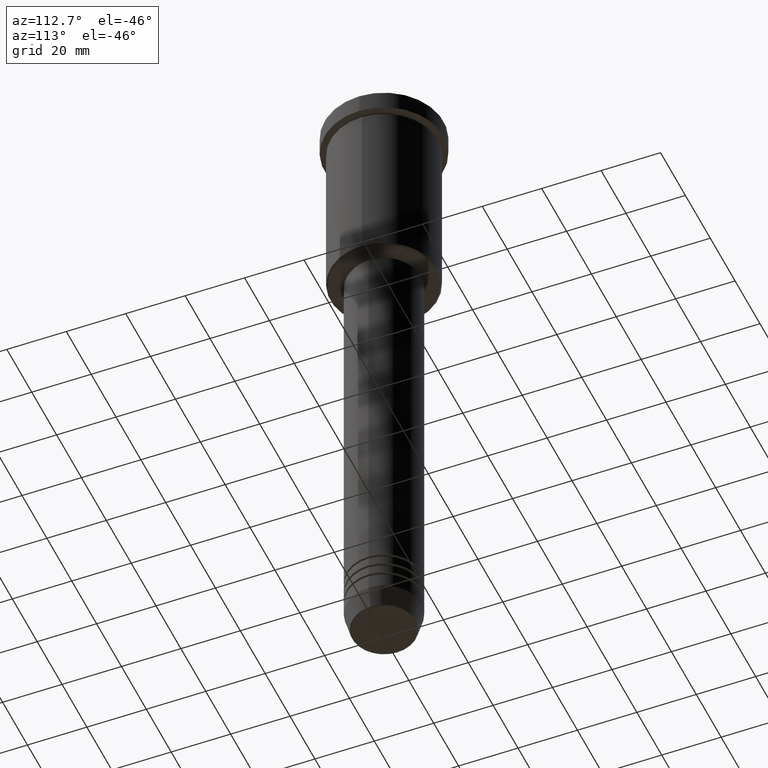
[diagram: clean part render]
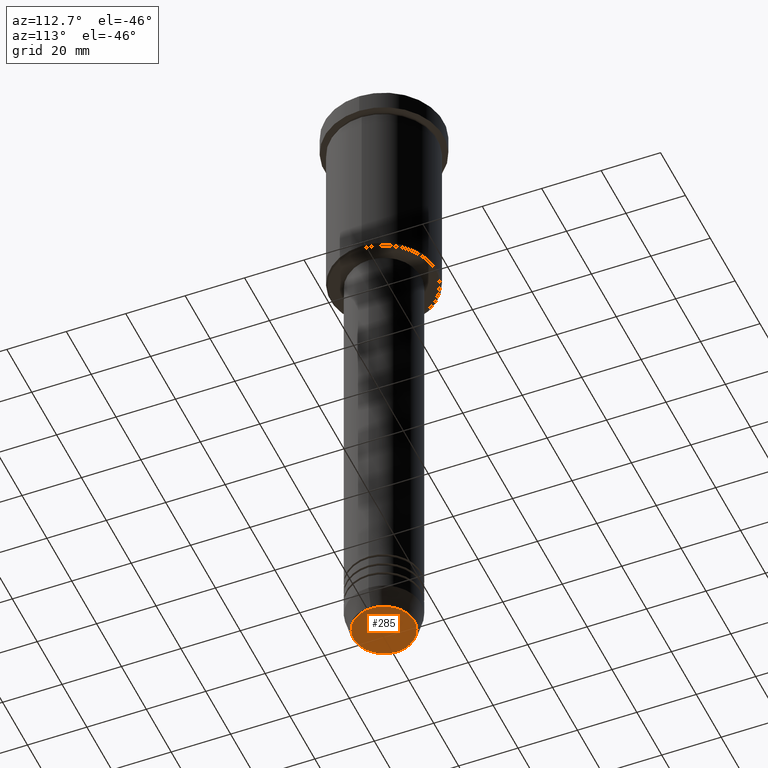
[diagram: same view with one face highlighted and labeled with its STEP entity id]
A machine part, auxiliary view. The second image highlights one B-rep face of the part: STEP entity #285.
In plain terms, the highlighted planar face has unit normal (0, -0, 1).
Its self-contained STEP definition (entity closure, byte-faithful):
#126 = CARTESIAN_POINT ( 'NONE',  ( 0.000000000000000000, 0.000000000000000000, -219.9999999999999716 ) ) ;
#161 = DIRECTION ( 'NONE',  ( 0.000000000000000000, 0.000000000000000000, -1.000000000000000000 ) ) ;
#195 = DIRECTION ( 'NONE',  ( 1.000000000000000000, 0.000000000000000000, 0.000000000000000000 ) ) ;
#198 = DIRECTION ( 'NONE',  ( 1.000000000000000000, 0.000000000000000000, 0.000000000000000000 ) ) ;
#231 = VERTEX_POINT ( 'NONE', #933 ) ;
#253 = ORIENTED_EDGE ( 'NONE', *, *, #364, .T. ) ;
#285 = ADVANCED_FACE ( 'NONE', ( #1014 ), #764, .F. ) ;
#364 = EDGE_CURVE ( 'NONE', #408, #231, #805, .T. ) ;
#408 = VERTEX_POINT ( 'NONE', #653 ) ;
#478 = DIRECTION ( 'NONE',  ( 0.000000000000000000, 0.000000000000000000, -1.000000000000000000 ) ) ;
#629 = DIRECTION ( 'NONE',  ( 1.000000000000000000, 0.000000000000000000, 0.000000000000000000 ) ) ;
#647 = ORIENTED_EDGE ( 'NONE', *, *, #1162, .T. ) ;
#653 = CARTESIAN_POINT ( 'NONE',  ( -10.24069215899266538, 1.283696036640842967E-15, -219.9999999999999716 ) ) ;
#723 = CARTESIAN_POINT ( 'NONE',  ( 0.000000000000000000, 0.000000000000000000, -219.9999999999999716 ) ) ;
#753 = CARTESIAN_POINT ( 'NONE',  ( 0.000000000000000000, 0.000000000000000000, -219.9999999999999716 ) ) ;
#764 = PLANE ( 'NONE',  #784 ) ;
#784 = AXIS2_PLACEMENT_3D ( 'NONE', #753, #1038, #195 ) ;
#805 = CIRCLE ( 'NONE', #1108, 10.24069215899266538 ) ;
#844 = EDGE_LOOP ( 'NONE', ( #647, #253 ) ) ;
#933 = CARTESIAN_POINT ( 'NONE',  ( 10.24069215899266538, 0.000000000000000000, -219.9999999999999716 ) ) ;
#1014 = FACE_OUTER_BOUND ( 'NONE', #844, .T. ) ;
#1038 = DIRECTION ( 'NONE',  ( 0.000000000000000000, -0.000000000000000000, 1.000000000000000000 ) ) ;
#1048 = CIRCLE ( 'NONE', #1083, 10.24069215899266538 ) ;
#1083 = AXIS2_PLACEMENT_3D ( 'NONE', #723, #161, #629 ) ;
#1108 = AXIS2_PLACEMENT_3D ( 'NONE', #126, #478, #198 ) ;
#1162 = EDGE_CURVE ( 'NONE', #231, #408, #1048, .T. ) ;